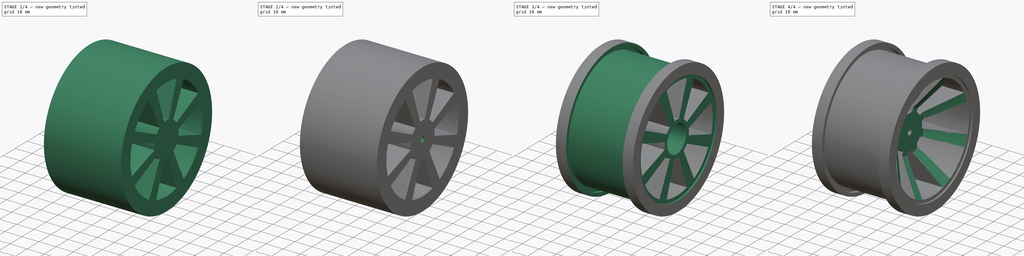
[diagram: build sequence overview — one tinted view per stage of 4, left to right]
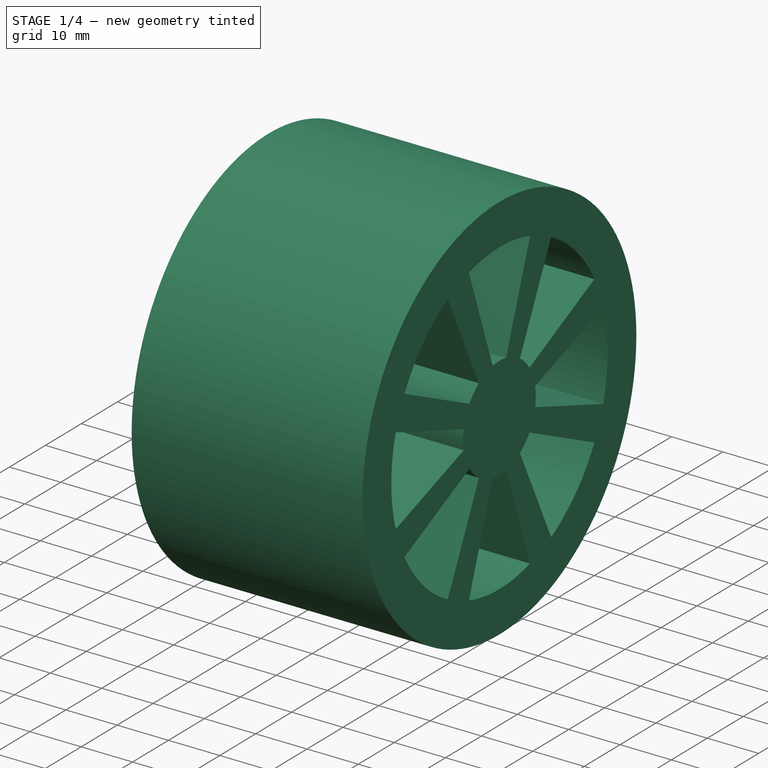
[diagram: stage 1 of 4 — iso view after this stage's code; geometry added in this stage tinted green]
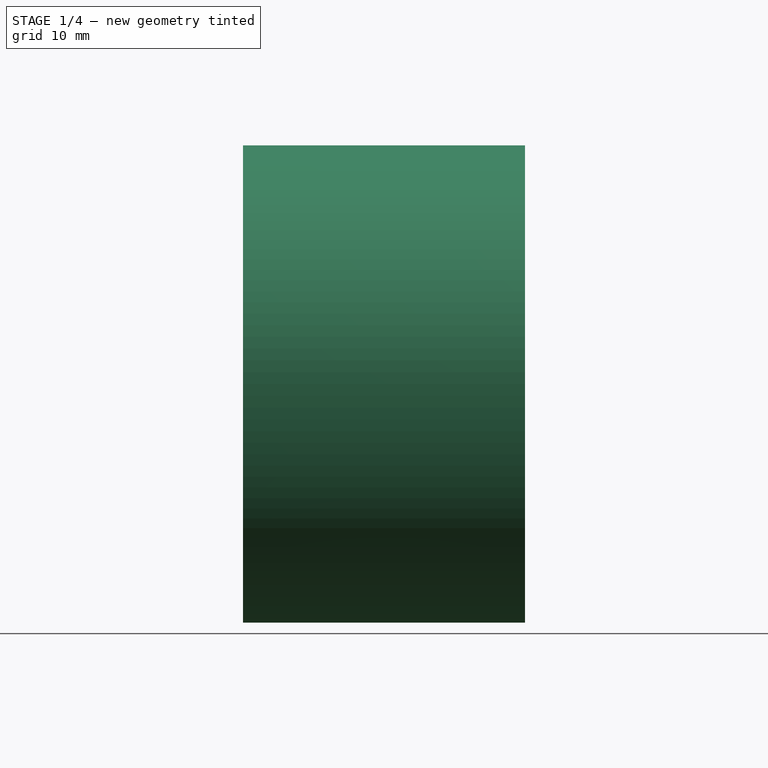
[diagram: stage 1 of 4 — front view after this stage's code; geometry added in this stage tinted green]
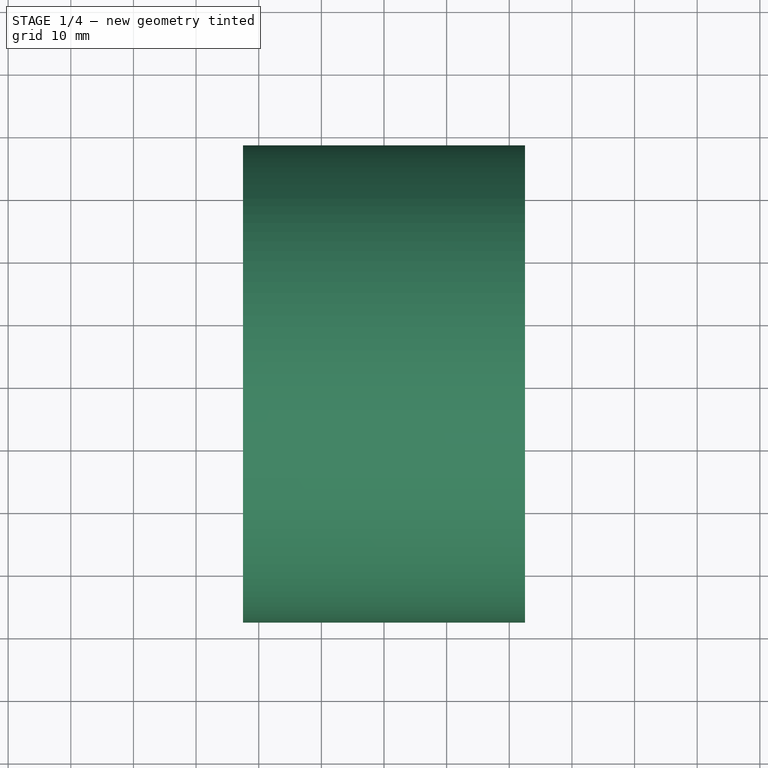
[diagram: stage 1 of 4 — top view after this stage's code; geometry added in this stage tinted green]
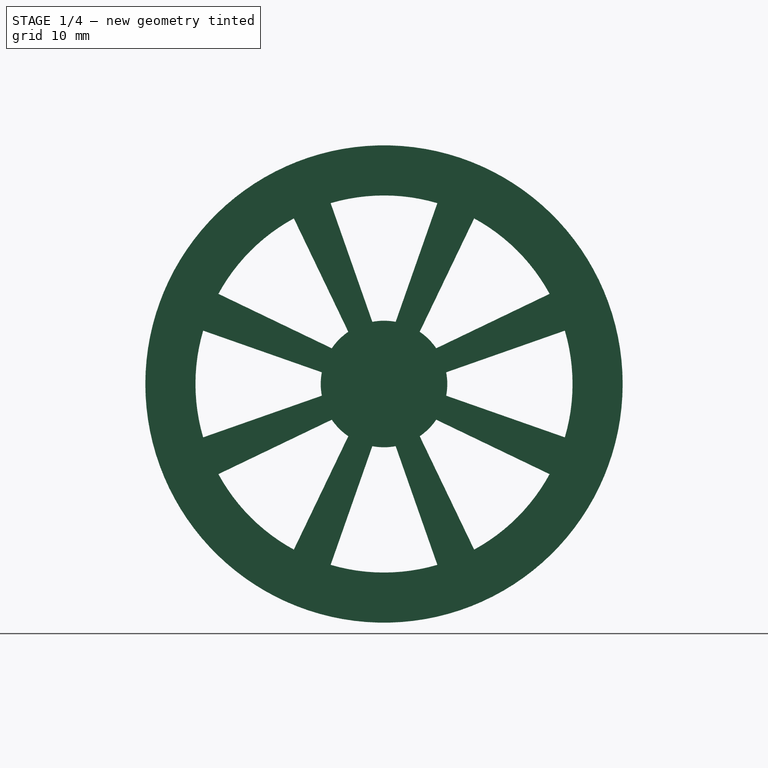
[diagram: stage 1 of 4 — right view after this stage's code; geometry added in this stage tinted green]
FCSTD DOCUMENT  (FreeCAD 0.17R13543 (Git))
Label: 1,5 Rim
License: CreativeCommons Attribution-NonCommercial-ShareAlike
LicenseURL: http://creativecommons.org/licenses/by-nc-sa/4.0/
objects: Sketcher::SketchObject×9, PartDesign::Pocket×7, PartDesign::SubtractiveCone×2, PartDesign::Pad×1, PartDesign::PolarPattern×1, PartDesign::Groove×1, PartDesign::Body×1
note: 33 computed .brp shape members not serialized (recipe doc carries the construction recipe); baked Part::Feature solids carry a one-line shape summary decoded from their .brp

FEATURE [Sketcher::SketchObject] Sketch027
  MapMode = 5
  Placement = pos=(0,0,0) rot=(0.57735,0.57735,0.57735;2.0944rad)
  Support = -> [YZ_Plane008]
  sketch-geometry (1):
    g0: Circle CenterX=0 CenterY=0 CenterZ=0 NormalX=0 NormalY=0 NormalZ=1 AngleXU=0 Radius=38.1
  constraints (2):
    c: Coincident(g0,g-1)
    c: Radius(g0) = 38.1
FEATURE [PartDesign::Pad] Pad009
  Length = 45
  Length2 = 100
  Midplane = true
  Placement = pos=(0,0,0) rot=(0.57735,0.57735,0.57735;2.0944rad)
  Profile = -> Sketch027
  Type = 0
FEATURE [Sketcher::SketchObject] Sketch028
  ExternalGeometry = -> [Pad009]
  MapMode = 5
  Placement = pos=(22.5,-3e-12,3e-12) rot=(0.57735,0.57735,0.57735;2.0944rad)
  Support = -> [Pad009]
  sketch-geometry (14):
    g0: GeomPoint X=0 Y=38.1 Z=0
    g1: Circle [constr] CenterX=0 CenterY=0 CenterZ=0 NormalX=0 NormalY=0 NormalZ=1 AngleXU=0 Radius=10.1
    g2: Circle [constr] CenterX=0 CenterY=0 CenterZ=0 NormalX=0 NormalY=0 NormalZ=1 AngleXU=0 Radius=30.1
    g3: GeomPoint X=0 Y=30.1 Z=0
    g4: GeomPoint X=0 Y=10.1 Z=0
    g5: LineSegment [constr] StartX=11.5188 StartY=27.8088 StartZ=0 EndX=-11.5188 EndY=-27.8088 EndZ=0
    g6: LineSegment [constr] StartX=-27.8088 StartY=11.5188 StartZ=0 EndX=27.8088 EndY=-11.5188 EndZ=0
    g7: LineSegment [constr] StartX=-11.5188 StartY=27.8088 StartZ=0 EndX=11.5188 EndY=-27.8088 EndZ=0
    g8: LineSegment [constr] StartX=27.8088 StartY=11.5188 StartZ=0 EndX=-27.8088 EndY=-11.5188 EndZ=0
    g9: ArcOfCircle CenterX=0 CenterY=0 CenterZ=0 NormalX=0 NormalY=0 NormalZ=1 AngleXU=0 Radius=10.1 StartAngle=1.38507 EndAngle=1.75653
    g10: ArcOfCircle CenterX=0 CenterY=0 CenterZ=0 NormalX=0 NormalY=0 NormalZ=1 AngleXU=0 Radius=30.1 StartAngle=1.28386 EndAngle=1.85773
    g11: LineSegment StartX=-1.8651 StartY=9.9263 StartZ=0 EndX=-8.51877 EndY=28.8694 EndZ=0
    g12: LineSegment StartX=8.51877 StartY=28.8694 StartZ=0 EndX=1.8651 EndY=9.9263 EndZ=0
    g13: GeomPoint X=-3.8651 Y=9.33118 Z=0
  constraints (37):
    c: PointOnObject(g0,g-3)
    c: PointOnObject(g0,g-2)
    c: Coincident(g1,g-1)
    c: Coincident(g2,g-1)
    c: PointOnObject(g3,g2)
    c: PointOnObject(g4,g1)
    c: PointOnObject(g4,g-2)
    c: PointOnObject(g3,g-2)
    c: DistanceY(g-1,g4) = 10.1
    c: DistanceY(g3,g0) = 8
    c: PointOnObject(g5,g2)
    c: PointOnObject(g-1,g5)
    c: PointOnObject(g6,g2)
    c: PointOnObject(g-1,g6)
    c: PointOnObject(g7,g2)
    c: PointOnObject(g7,g2)
    c: PointOnObject(g8,g2)
    c: PointOnObject(g-1,g8)
    c: PointOnObject(g-1,g7)
    c: Symmetric(g6,g5,g7)
    c: Symmetric(g5,g6,g8)
    c: Symmetric(g8,g6,g-1)
    c: Symmetric(g7,g8,g5)
    c: Coincident(g9,g-1)
    c: PointOnObject(g9,g1)
    c: Coincident(g10,g-1)
    c: PointOnObject(g10,g2)
    c: Coincident(g11,g10)
    c: Coincident(g12,g10)
    c: Coincident(g12,g9)
    c: Symmetric(g10,g10,g-2)
    c: Symmetric(g9,g9,g-2)
    c: Coincident(g11,g9)
    c: DistanceX(g7,g10) = 3
    c: PointOnObject(g13,g1)
    c: PointOnObject(g13,g7)
    c: DistanceX(g13,g9) = 2
FEATURE [PartDesign::Pocket] Pocket015
  BaseFeature = -> Pad009
  Length = 5
  Length2 = 100
  Midplane = true
  Placement = pos=(0,0,0) rot=(0.57735,0.57735,0.57735;2.0944rad)
  Profile = -> Sketch028
  Type = 1
FEATURE [PartDesign::PolarPattern] PolarPattern
  Angle = 360
  Axis = -> Sketch028 [N_Axis]
  BaseFeature = -> Pocket015
  Occurrences = 8
  Originals = -> [Pocket015]
  Placement = pos=(0,0,0) rot=(0.57735,0.57735,0.57735;2.0944rad)
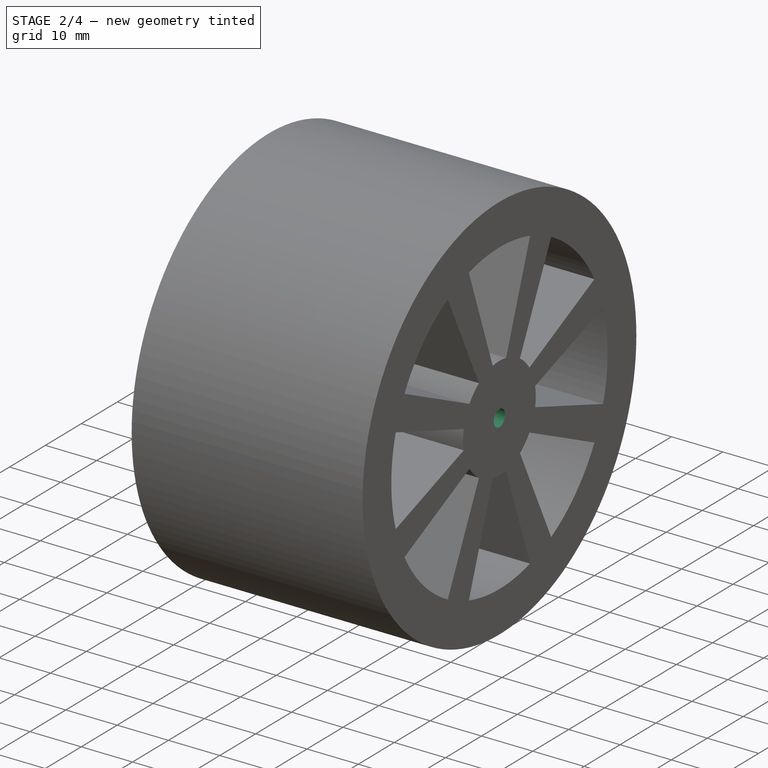
[diagram: stage 2 of 4 — iso view after this stage's code; geometry added in this stage tinted green]
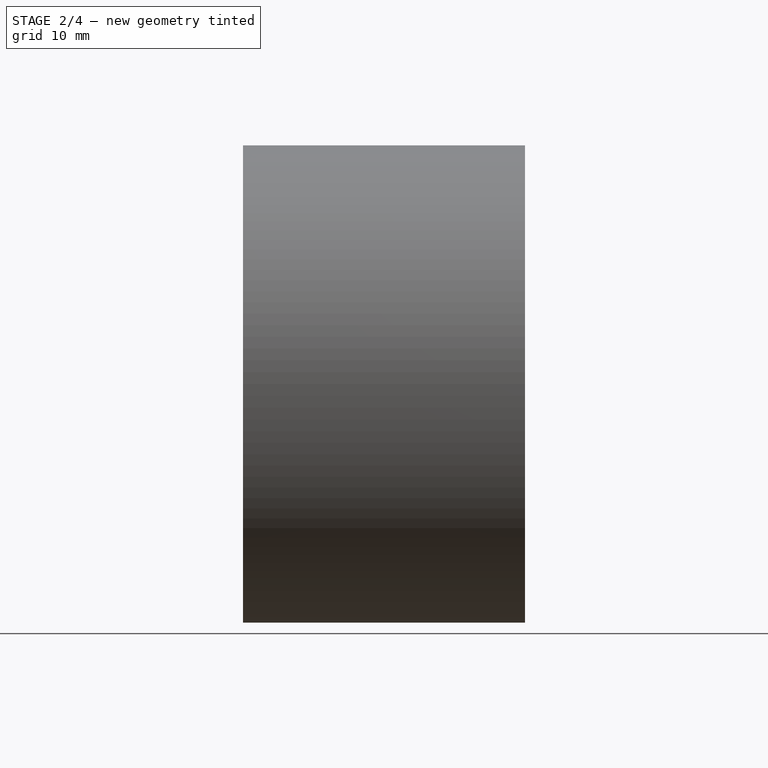
[diagram: stage 2 of 4 — front view after this stage's code; geometry added in this stage tinted green]
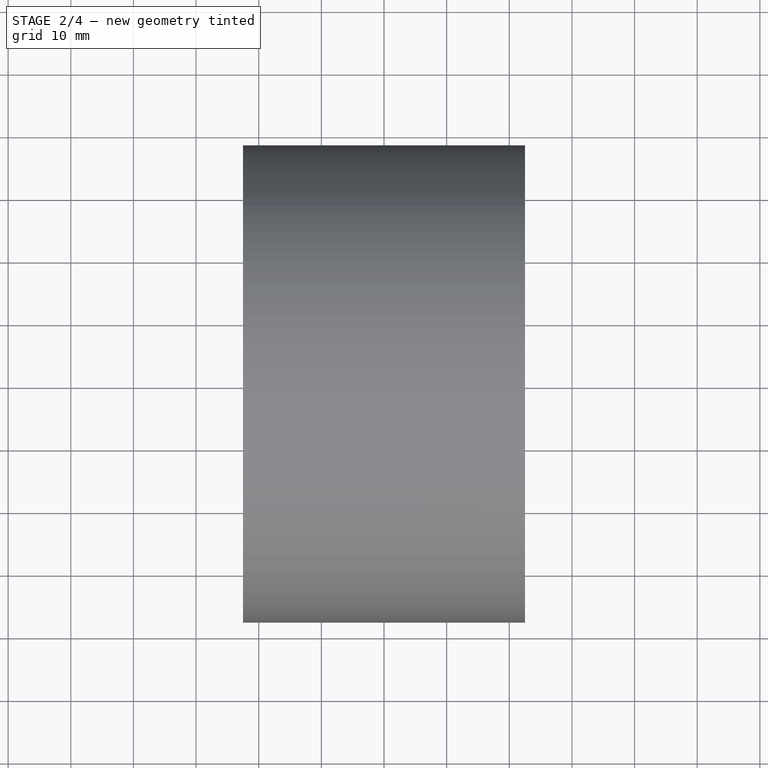
[diagram: stage 2 of 4 — top view after this stage's code; geometry added in this stage tinted green]
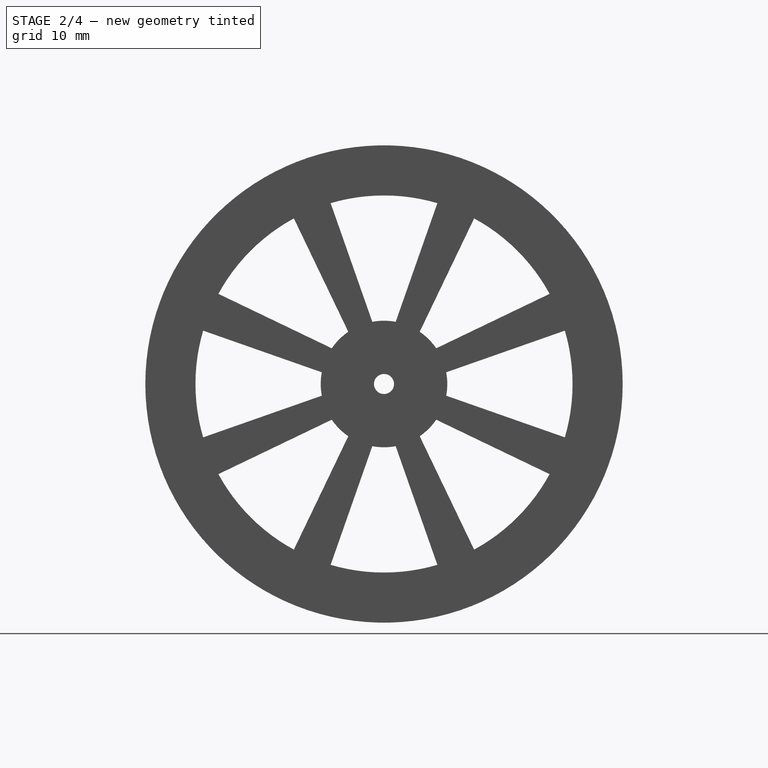
[diagram: stage 2 of 4 — right view after this stage's code; geometry added in this stage tinted green]
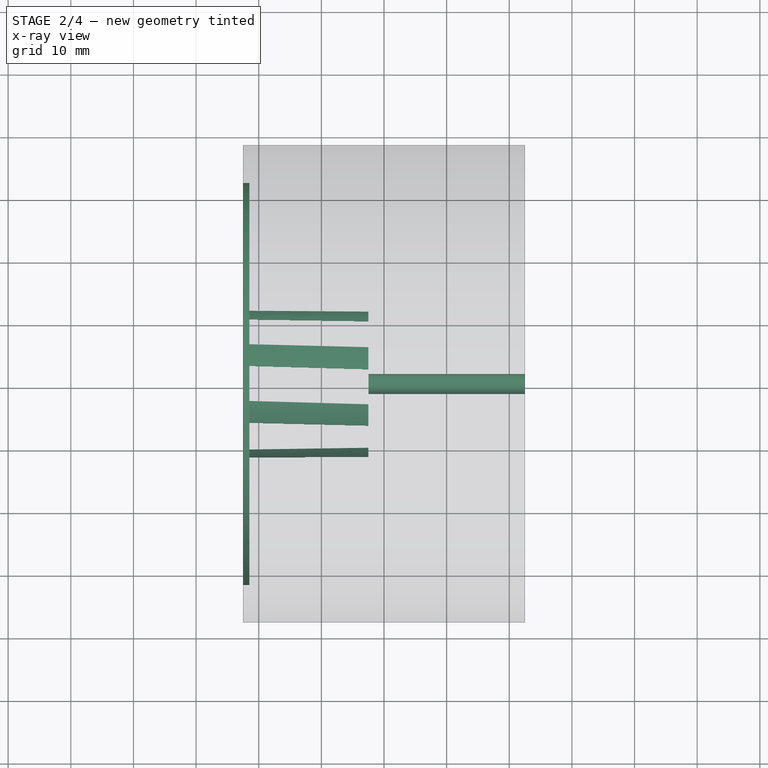
[diagram: stage 2 of 4 — x-ray composite at the top view; earlier geometry ghosted, this stage's added geometry solid]
FEATURE [Sketcher::SketchObject] Sketch029
  MapMode = 5
  Placement = pos=(22.5,-3e-12,3e-12) rot=(0.57735,0.57735,0.57735;2.0944rad)
  Support = -> [PolarPattern]
  sketch-geometry (1):
    g0: Circle CenterX=0 CenterY=0 CenterZ=0 NormalX=0 NormalY=0 NormalZ=1 AngleXU=0 Radius=1.6
  constraints (2):
    c: Coincident(g0,g-1)
    c: Radius(g0) = 1.6
FEATURE [PartDesign::Pocket] Pocket016
  BaseFeature = -> PolarPattern
  Length = 5
  Length2 = 100
  Midplane = true
  Placement = pos=(0,0,0) rot=(0.57735,0.57735,0.57735;2.0944rad)
  Profile = -> Sketch029
  Type = 1
FEATURE [Sketcher::SketchObject] Sketch030
  ExternalGeometry = -> [Pocket016]
  MapMode = 5
  Placement = pos=(-22.5,3e-12,-3e-12) rot=(0.57735,0.57735,-0.57735;4.18879rad)
  Support = -> [Pocket016]
  sketch-geometry (3):
    g0: Circle CenterX=0 CenterY=0 CenterZ=0 NormalX=0 NormalY=0 NormalZ=1 AngleXU=0 Radius=32.1
    g1: GeomPoint X=0 Y=38.1 Z=0
    g2: GeomPoint X=0 Y=32.1 Z=0
  constraints (6):
    c: Coincident(g0,g-1)
    c: PointOnObject(g1,g-3)
    c: PointOnObject(g2,g0)
    c: PointOnObject(g2,g-2)
    c: PointOnObject(g1,g-2)
    c: DistanceY(g2,g1) = 6
FEATURE [PartDesign::Pocket] Pocket017
  BaseFeature = -> Pocket016
  Length = 1
  Length2 = 100
  Placement = pos=(0,0,0) rot=(0.57735,0.57735,0.57735;2.0944rad)
  Profile = -> Sketch030
  Type = 0
FEATURE [Sketcher::SketchObject] Sketch031
  MapMode = 5
  Placement = pos=(-21.5,2e-12,-2e-12) rot=(0.57735,0.57735,-0.57735;4.18879rad)
  Support = -> [Pocket017]
  sketch-geometry (1):
    g0: Circle CenterX=0 CenterY=0 CenterZ=0 NormalX=0 NormalY=0 NormalZ=1 AngleXU=0 Radius=12
  constraints (2):
    c: Coincident(g0,g-1)
    c: Radius(g0) = 12
FEATURE [PartDesign::Pocket] Pocket018
  BaseFeature = -> Pocket017
  Length = 19
  Length2 = 100
  Placement = pos=(0,0,0) rot=(0.57735,0.57735,0.57735;2.0944rad)
  Profile = -> Sketch031
  Type = 0
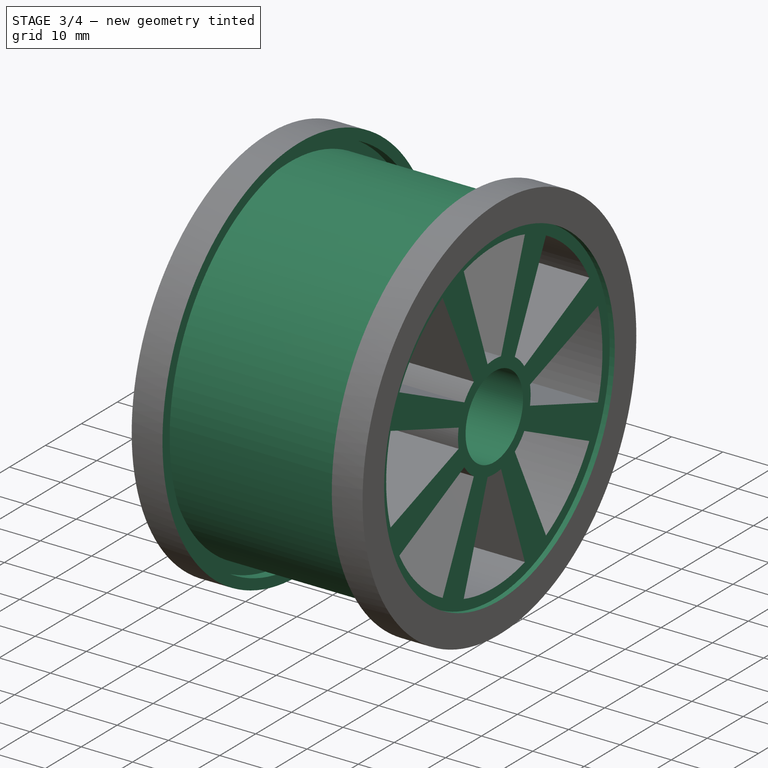
[diagram: stage 3 of 4 — iso view after this stage's code; geometry added in this stage tinted green]
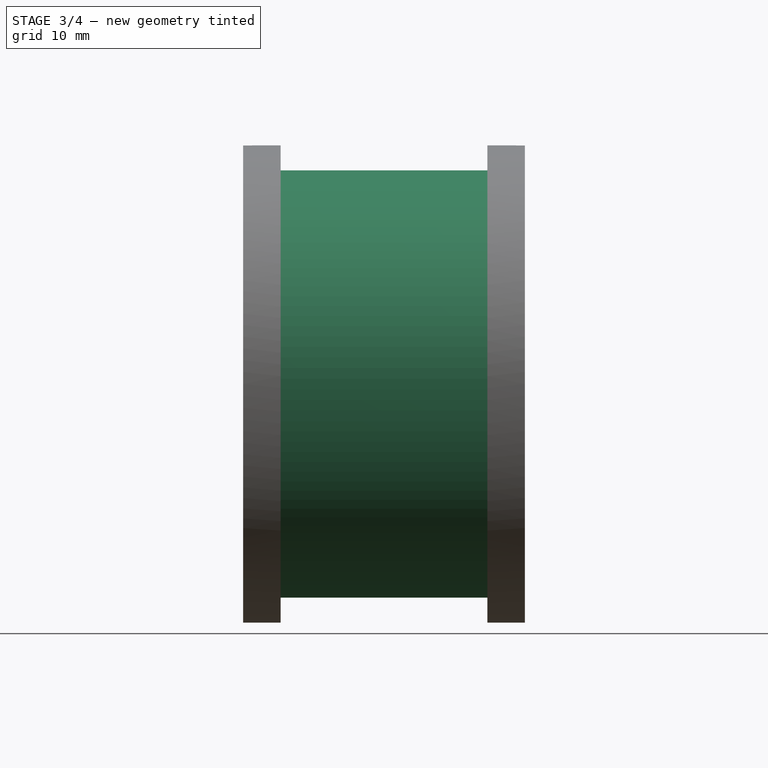
[diagram: stage 3 of 4 — front view after this stage's code; geometry added in this stage tinted green]
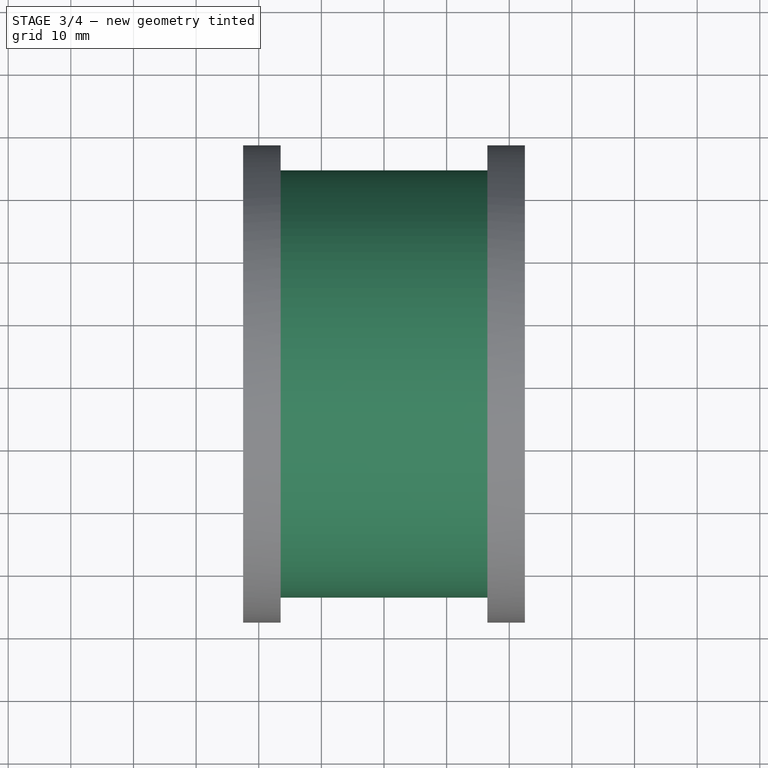
[diagram: stage 3 of 4 — top view after this stage's code; geometry added in this stage tinted green]
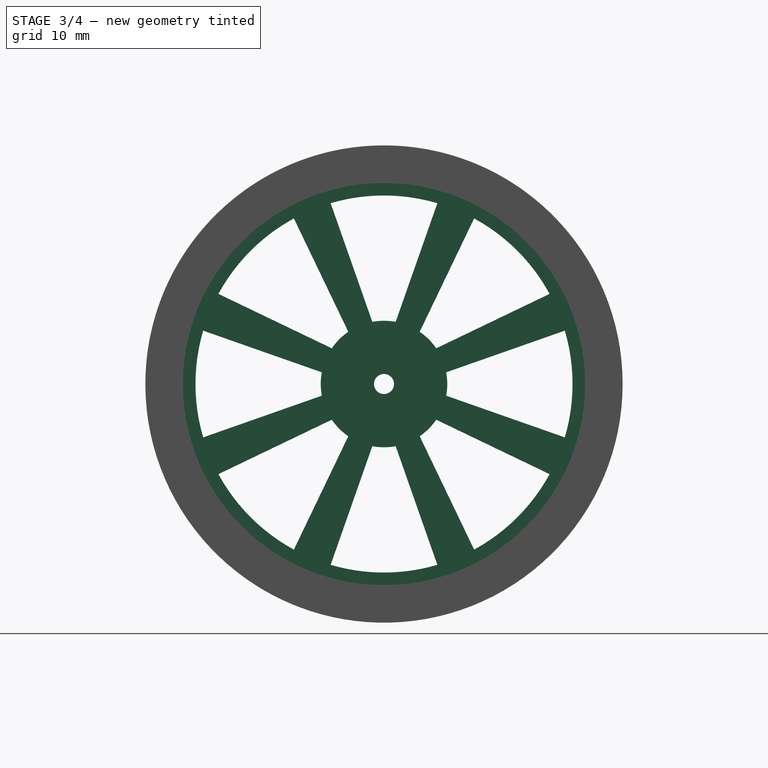
[diagram: stage 3 of 4 — right view after this stage's code; geometry added in this stage tinted green]
FEATURE [Sketcher::SketchObject] Sketch033
  MapMode = 5
  Placement = pos=(0,0,0) rot=(1,0,0;1.5708rad)
  Support = -> [XZ_Plane008]
  sketch-geometry (9):
    g0: LineSegment StartX=-16.5 StartY=38.1 StartZ=0 EndX=16.5 EndY=38.1 EndZ=0
    g1: LineSegment StartX=16.5 StartY=38.1 StartZ=0 EndX=16.5 EndY=36.1 EndZ=0
    g2: LineSegment StartX=16.5 StartY=36.1 StartZ=0 EndX=18.5 EndY=36.1 EndZ=0
    g3: LineSegment StartX=18.5 StartY=36.1 StartZ=0 EndX=18.5 EndY=34.1 EndZ=0
    g4: LineSegment StartX=18.5 StartY=34.1 StartZ=0 EndX=-18.5 EndY=34.1 EndZ=0
    g5: LineSegment StartX=-18.5 StartY=34.1 StartZ=0 EndX=-18.5 EndY=36.1 EndZ=0
    g6: LineSegment StartX=-18.5 StartY=36.1 StartZ=0 EndX=-16.5 EndY=36.1 EndZ=0
    g7: LineSegment StartX=-16.5 StartY=36.1 StartZ=0 EndX=-16.5 EndY=38.1 EndZ=0
    g8: LineSegment [constr] StartX=0 StartY=38.1 StartZ=0 EndX=0 EndY=34.1 EndZ=0
  constraints (28):
    c: Horizontal(g0)
    c: Coincident(g0,g1)
    c: Coincident(g1,g2)
    c: Coincident(g2,g3)
    c: Coincident(g3,g4)
    c: Horizontal(g4)
    c: Coincident(g4,g5)
    c: Coincident(g5,g6)
    c: Coincident(g6,g7)
    c: Vertical(g7)
    c: Horizontal(g6)
    c: Horizontal(g2)
    c: Coincident(g0,g7)
    c: Vertical(g5)
    c: Vertical(g3)
    c: DistanceY(g4,g0) = 4
    c: DistanceY(g6,g0) = 2
    c: DistanceX(g6,g6) = 2
    c: PointOnObject(g8,g0)
    c: PointOnObject(g8,g4)
    c: Vertical(g8)
    c: Symmetric(g4,g3,g8)
    c: Symmetric(g5,g2,g8)
    c: Vertical(g1)
    c: Symmetric(g0,g0,g8)
    c: DistanceX(g4,g3) = 37
    c: DistanceY(g-1,g0) = 38.1
    c: PointOnObject(g8,g-2)
FEATURE [PartDesign::Groove] Groove
  Angle = 360
  Axis = (1,0,0)
  Base = (0,0,0)
  BaseFeature = -> Pocket018
  Placement = pos=(0,0,0) rot=(0.57735,0.57735,0.57735;2.0944rad)
  Profile = -> Sketch033
  ReferenceAxis = -> X_Axis008
FEATURE [Sketcher::SketchObject] Sketch034
  ExternalGeometry = -> [Groove]
  MapMode = 5
  Placement = pos=(22.5,-3e-12,3e-12) rot=(0.57735,0.57735,0.57735;2.0944rad)
  Support = -> [Groove]
  sketch-geometry (3):
    g0: Circle CenterX=0 CenterY=0 CenterZ=0 NormalX=0 NormalY=0 NormalZ=1 AngleXU=0 Radius=32.1
    g1: GeomPoint X=0 Y=38.1 Z=0
    g2: GeomPoint X=0 Y=32.1 Z=0
  constraints (6):
    c: Coincident(g0,g-1)
    c: PointOnObject(g1,g-3)
    c: PointOnObject(g2,g0)
    c: PointOnObject(g2,g-2)
    c: PointOnObject(g1,g-2)
    c: DistanceY(g2,g1) = 6
FEATURE [PartDesign::Pocket] Pocket019
  BaseFeature = -> Groove
  Length = 1
  Length2 = 100
  Placement = pos=(0,0,0) rot=(0.57735,0.57735,0.57735;2.0944rad)
  Profile = -> Sketch034
  Type = 0
FEATURE [Sketcher::SketchObject] Sketch035
  MapMode = 5
  Placement = pos=(21.5,-2e-12,2e-12) rot=(0.57735,0.57735,0.57735;2.0944rad)
  Support = -> [Pocket019]
  sketch-geometry (1):
    g0: Circle CenterX=0 CenterY=0 CenterZ=0 NormalX=0 NormalY=0 NormalZ=1 AngleXU=0 Radius=8
  constraints (2):
    c: Coincident(g0,g-1)
    c: Radius(g0) = 8
FEATURE [PartDesign::Pocket] Pocket020
  BaseFeature = -> Pocket019
  Length = 13
  Length2 = 100
  Placement = pos=(0,0,0) rot=(0.57735,0.57735,0.57735;2.0944rad)
  Profile = -> Sketch035
  Type = 0
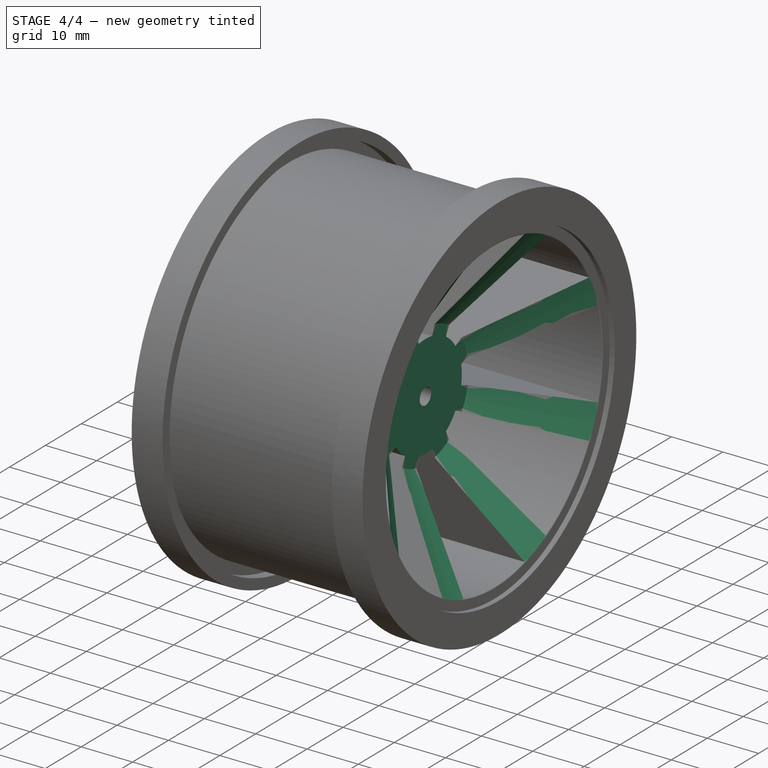
[diagram: stage 4 of 4 — iso view after this stage's code; geometry added in this stage tinted green]
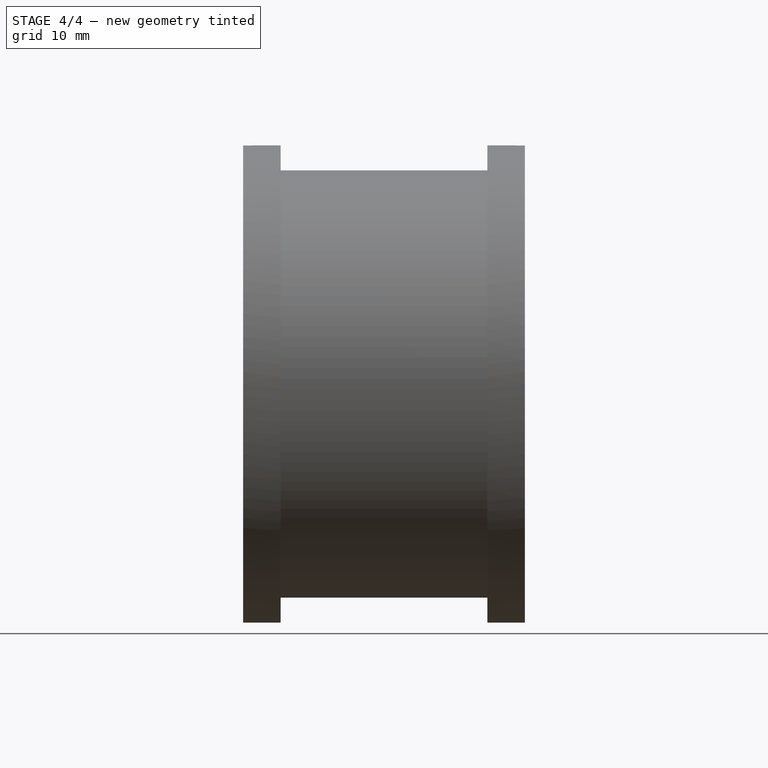
[diagram: stage 4 of 4 — front view after this stage's code; geometry added in this stage tinted green]
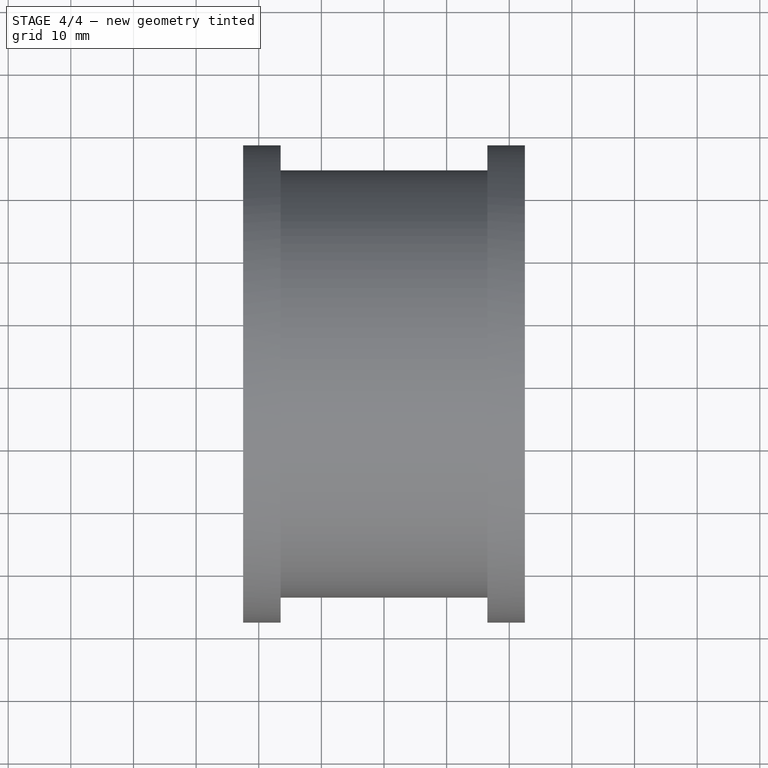
[diagram: stage 4 of 4 — top view after this stage's code; geometry added in this stage tinted green]
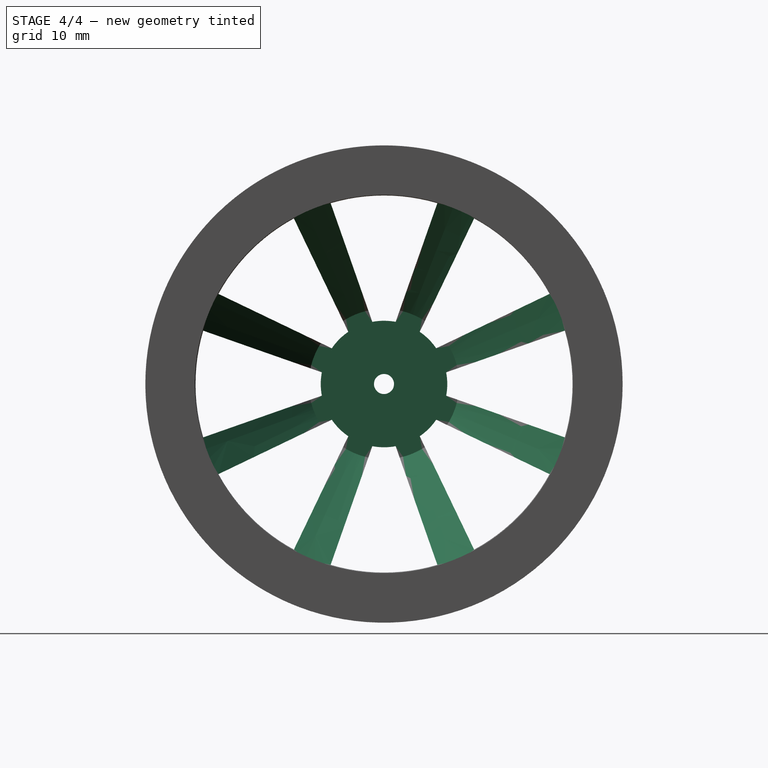
[diagram: stage 4 of 4 — right view after this stage's code; geometry added in this stage tinted green]
FEATURE [PartDesign::SubtractiveCone] Cone
  Angle = 360
  AttacherType = Attacher::AttachEngine3D
  AttachmentOffset = pos=(0,0,-13) rot=(0,0,1;0rad)
  BaseFeature = -> Pocket020
  Height = 14
  MapMode = 45
  Placement = pos=(8.08674,-2e-12,1e-12) rot=(0.57735,0.57735,0.57735;2.0944rad)
  Radius1 = 12
  Radius2 = 31
  Support = -> [Pocket020]
FEATURE [PartDesign::SubtractiveCone] Cone001
  Angle = 360
  AttacherType = Attacher::AttachEngine3D
  BaseFeature = -> Cone
  Height = 19
  MapMode = 5
  Placement = pos=(-2.5,-1e-12,0) rot=(0.57735,0.57735,-0.57735;4.18879rad)
  Radius1 = 12
  Radius2 = 30
  Support = -> [Cone]
FEATURE [Sketcher::SketchObject] Sketch069
  MapMode = 5
  Placement = pos=(-2.5,-1e-12,0) rot=(0.57735,0.57735,-0.57735;4.18879rad)
  Support = -> [Cone001]
  sketch-geometry (15):
    g0: Circle [constr] CenterX=0 CenterY=0 CenterZ=0 NormalX=0 NormalY=0 NormalZ=1 AngleXU=0 Radius=10
    g1: LineSegment [constr] StartX=-7.07107 StartY=7.07107 StartZ=0 EndX=7.07107 EndY=-7.07107 EndZ=0
    g2: LineSegment [constr] StartX=-7.07107 StartY=-7.07107 StartZ=0 EndX=7.07107 EndY=7.07107 EndZ=0
    g3: Circle [constr] CenterX=-3.53553 CenterY=-3.53553 CenterZ=0 NormalX=0 NormalY=0 NormalZ=1 AngleXU=0 Radius=5
    g4: Circle [constr] CenterX=-3.53553 CenterY=3.53553 CenterZ=0 NormalX=0 NormalY=0 NormalZ=1 AngleXU=0 Radius=5
    g5: Circle [constr] CenterX=3.53553 CenterY=3.53553 CenterZ=0 NormalX=0 NormalY=0 NormalZ=1 AngleXU=0 Radius=5
    g6: Circle [constr] CenterX=3.53553 CenterY=-3.53553 CenterZ=0 NormalX=0 NormalY=0 NormalZ=1 AngleXU=0 Radius=5
    g7: GeomPoint X=-7.07107 Y=0 Z=0
    g8: GeomPoint X=0 Y=7.07107 Z=0
    g9: GeomPoint X=7.07107 Y=0 Z=0
    g10: GeomPoint X=0 Y=-7.07107 Z=0
    g11: Circle CenterX=-7.07107 CenterY=0 CenterZ=0 NormalX=0 NormalY=0 NormalZ=1 AngleXU=0 Radius=1.6
    g12: Circle CenterX=0 CenterY=7.07107 CenterZ=0 NormalX=0 NormalY=0 NormalZ=1 AngleXU=0 Radius=1.6
    g13: Circle CenterX=7.07107 CenterY=0 CenterZ=0 NormalX=0 NormalY=0 NormalZ=1 AngleXU=0 Radius=1.6
    g14: Circle CenterX=0 CenterY=-7.07107 CenterZ=0 NormalX=0 NormalY=0 NormalZ=1 AngleXU=0 Radius=1.6
  constraints (39):
    c: Coincident(g0,g-1)
    c: Radius(g0) = 10
    c: PointOnObject(g1,g0)
    c: PointOnObject(g1,g0)
    c: PointOnObject(g2,g0)
    c: PointOnObject(g2,g0)
    c: PointOnObject(g-1,g1)
    c: PointOnObject(g-1,g2)
    c: Symmetric(g2,g1,g-2)
    c: Symmetric(g2,g1,g-1)
    c: PointOnObject(g3,g2)
    c: PointOnObject(g-1,g3)
    c: PointOnObject(g4,g1)
    c: PointOnObject(g-1,g4)
    c: PointOnObject(g5,g2)
    c: PointOnObject(g-1,g5)
    c: PointOnObject(g6,g1)
    c: PointOnObject(g-1,g6)
    c: Tangent(g6,g0)
    c: Tangent(g5,g0)
    c: Tangent(g4,g0)
    c: Tangent(g3,g0)
    c: PointOnObject(g8,g4)
    c: PointOnObject(g9,g6)
    c: PointOnObject(g10,g3)
    c: PointOnObject(g7,g3)
    c: PointOnObject(g7,g4)
    c: PointOnObject(g8,g5)
    c: PointOnObject(g9,g5)
    c: PointOnObject(g10,g6)
    c: Coincident(g11,g7)
    c: Coincident(g12,g8)
    c: Coincident(g13,g9)
    c: Coincident(g14,g10)
    c: Radius(g14) = 1.6
    c: Equal(g14,g13)
    c: Equal(g14,g12)
    c: Equal(g14,g11)
    c: Angle(g2,g-2) = 0.785398
FEATURE [PartDesign::Pocket] Pocket040
  BaseFeature = -> Cone001
  Length = 8
  Length2 = 100
  Placement = pos=(-2.5,-1e-12,0) rot=(0.57735,0.57735,-0.57735;4.18879rad)
  Profile = -> Sketch069
  Type = 0
FEATURE [PartDesign::Body] Body006  label="Rim"
  Group = -> [Sketch027,Pad009,Sketch028,Pocket015,PolarPattern,Sketch029,Pocket016,Sketch030,Pocket017,Sketch031,Pocket018,Sketch033,Groove,Sketch034,Pocket019,Sketch035,Pocket020,Cone,Cone001,Sketch069,Pocket040]
  Origin = -> Origin008
  Placement = pos=(7.1,0,0) rot=(0,0,1;0rad)
  Tip = -> Pocket040
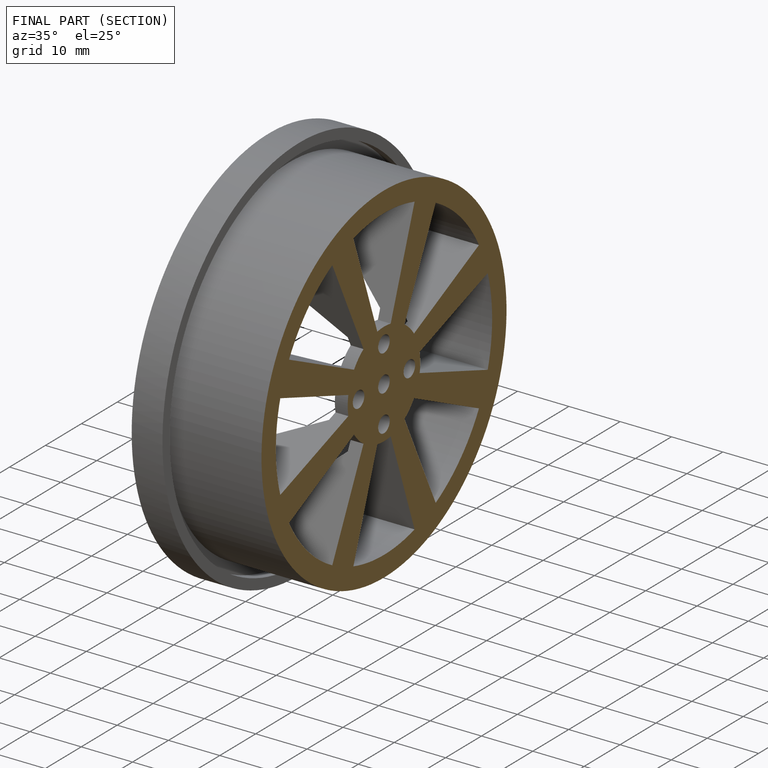
[diagram: finished part — half-section view (interior)]
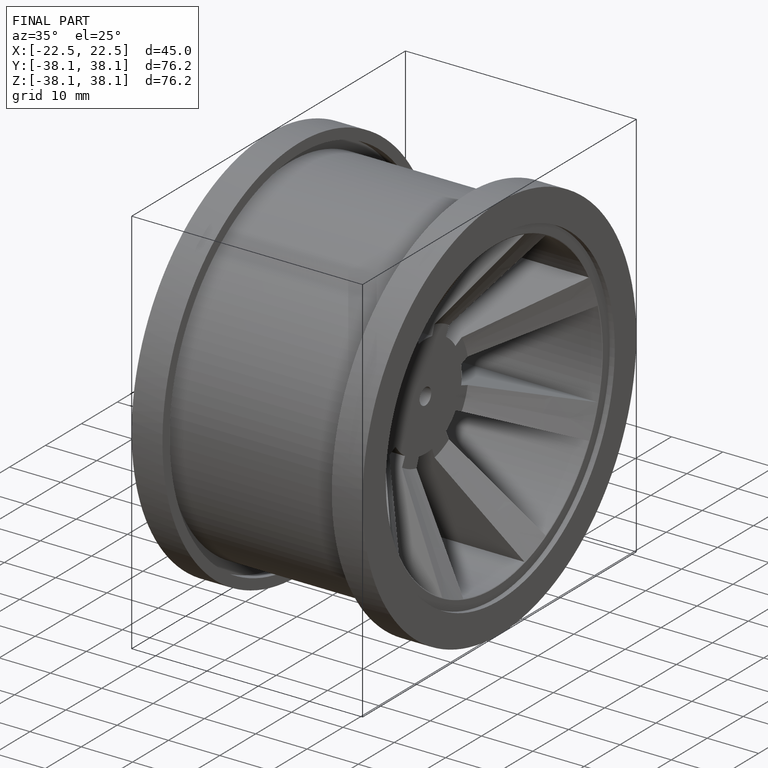
[diagram: finished part — iso view with bounding-box wireframe]
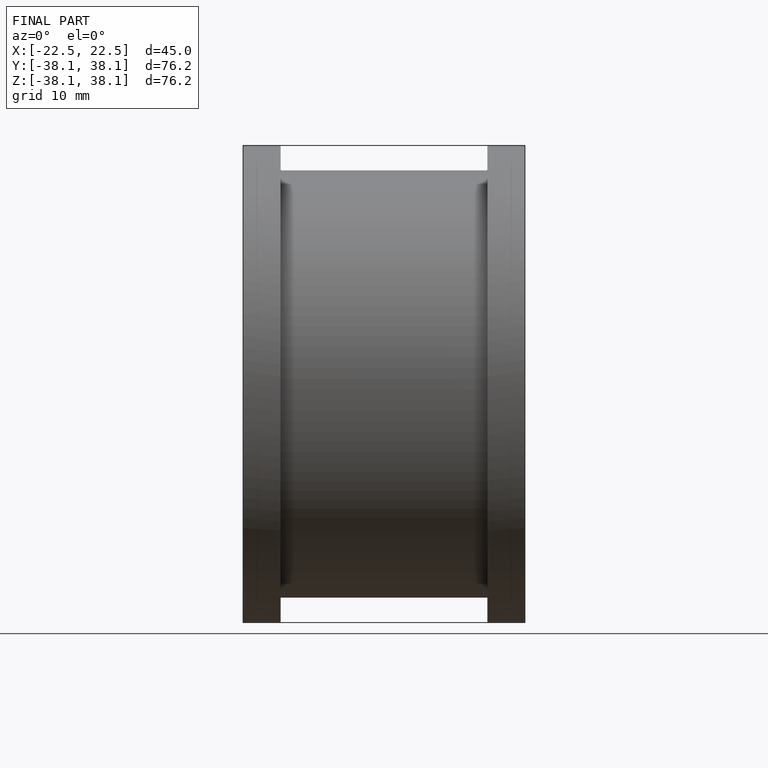
[diagram: finished part — front view with bounding-box wireframe]
